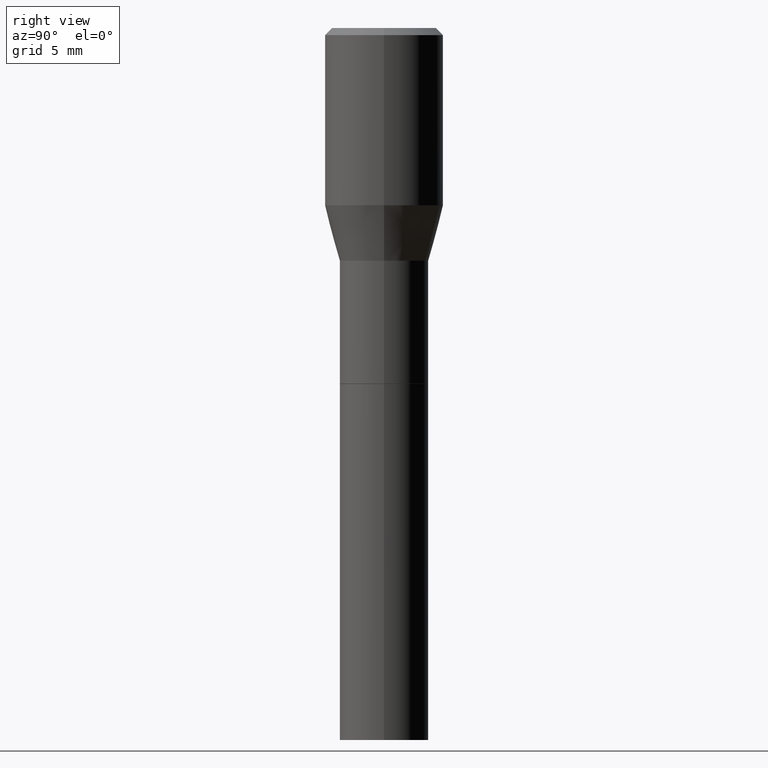
[diagram: clean part render]
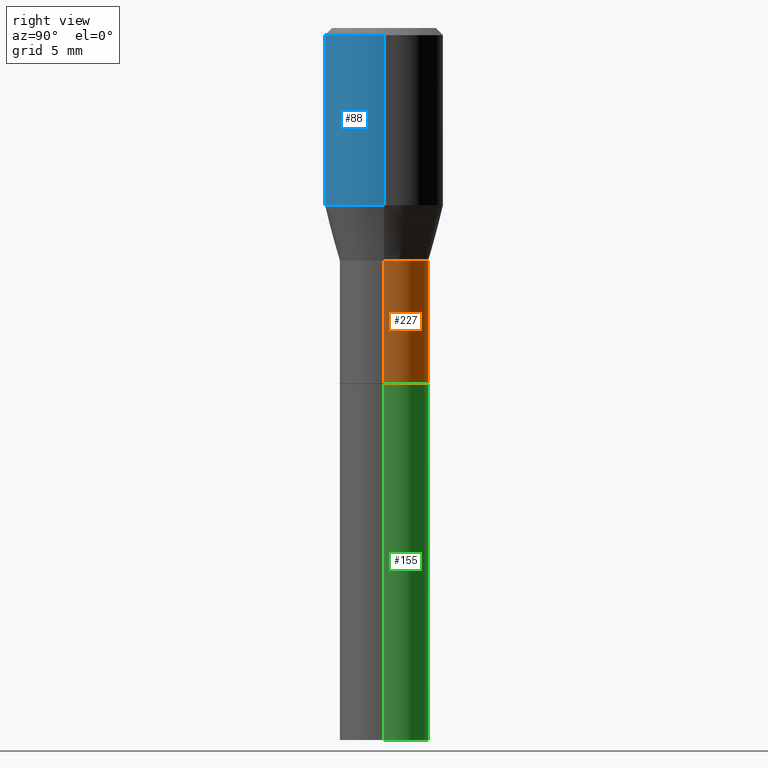
[diagram: same view with three faces highlighted in distinct colors, each labeled with its STEP entity id]
A machine part, right view with three faces highlighted in distinct colors.
Their STEP definitions:

[orange] entity #227 — the highlighted cylindrical surface (partial cylindrical patch) has radius 2.3813 mm, axis along (-0, 0, 1).
#1 = DIRECTION ( 'NONE',  ( -2.445468806185136597E-29, 3.491481338843145583E-15, 1.000000000000000000 ) ) ;
#77 = DIRECTION ( 'NONE',  ( -2.445468806185136597E-29, 3.491481338843145583E-15, 1.000000000000000000 ) ) ;
#78 = ORIENTED_EDGE ( 'NONE', *, *, #410, .T. ) ;
#83 = ORIENTED_EDGE ( 'NONE', *, *, #338, .T. ) ;
#99 = DIRECTION ( 'NONE',  ( 1.000000000000000000, -6.982962677686266711E-15, 4.876176775795935793E-29 ) ) ;
#104 = FACE_OUTER_BOUND ( 'NONE', #439, .T. ) ;
#113 = CARTESIAN_POINT ( 'NONE',  ( -0.09375000000000005551, -7.300699614480138057E-16, -0.4900000000000001577 ) ) ;
#115 = CARTESIAN_POINT ( 'NONE',  ( 0.09375000000000012490, -6.546527510330883916E-16, 4.571415727308696112E-30 ) ) ;
#118 = DIRECTION ( 'NONE',  ( 1.000000000000000000, -6.982962677686269077E-15, 0.000000000000000000 ) ) ;
#120 = VERTEX_POINT ( 'NONE', #443 ) ;
#147 = CARTESIAN_POINT ( 'NONE',  ( 0.09375000000000005551, -2.365478607066230027E-15, -0.4900000000000001577 ) ) ;
#151 = ORIENTED_EDGE ( 'NONE', *, *, #436, .F. ) ;
#193 = LINE ( 'NONE', #254, #317 ) ;
#196 = CIRCLE ( 'NONE', #341, 0.09375000000000019429 ) ;
#217 = AXIS2_PLACEMENT_3D ( 'NONE', #257, #399, #293 ) ;
#223 = CARTESIAN_POINT ( 'NONE',  ( -0.09375000000000019429, -1.950731448687842083E-15, -0.7495000000000000551 ) ) ;
#227 = ADVANCED_FACE ( 'NONE', ( #104 ), #282, .T. ) ;
#241 = VECTOR ( 'NONE', #333, 39.37007874015748143 ) ;
#254 = CARTESIAN_POINT ( 'NONE',  ( -0.09375000000000012490, 6.661338147750948117E-16, -4.611501647113980301E-30 ) ) ;
#257 = CARTESIAN_POINT ( 'NONE',  ( 1.198279715030717314E-29, -1.710825856033141931E-15, -0.4900000000000001577 ) ) ;
#282 = CYLINDRICAL_SURFACE ( 'NONE', #330, 0.09375000000000012490 ) ;
#293 = DIRECTION ( 'NONE',  ( 1.000000000000000000, -6.982962677686269077E-15, 0.000000000000000000 ) ) ;
#301 = ORIENTED_EDGE ( 'NONE', *, *, #380, .F. ) ;
#303 = DIRECTION ( 'NONE',  ( -2.445468806185136877E-29, 3.491481338843145188E-15, 1.000000000000000000 ) ) ;
#312 = CIRCLE ( 'NONE', #217, 0.09375000000000005551 ) ;
#317 = VECTOR ( 'NONE', #303, 39.37007874015748143 ) ;
#330 = AXIS2_PLACEMENT_3D ( 'NONE', #427, #1, #99 ) ;
#333 = DIRECTION ( 'NONE',  ( -2.445468806185136877E-29, 3.491481338843145188E-15, 1.000000000000000000 ) ) ;
#335 = LINE ( 'NONE', #115, #241 ) ;
#338 = EDGE_CURVE ( 'NONE', #413, #357, #193, .T. ) ;
#341 = AXIS2_PLACEMENT_3D ( 'NONE', #397, #77, #118 ) ;
#357 = VERTEX_POINT ( 'NONE', #113 ) ;
#380 = EDGE_CURVE ( 'NONE', #120, #426, #335, .T. ) ;
#397 = CARTESIAN_POINT ( 'NONE',  ( 1.832878870235759926E-29, -2.616865263462937979E-15, -0.7495000000000000551 ) ) ;
#399 = DIRECTION ( 'NONE',  ( -2.445468806185136597E-29, 3.491481338843145583E-15, 1.000000000000000000 ) ) ;
#410 = EDGE_CURVE ( 'NONE', #120, #413, #196, .T. ) ;
#413 = VERTEX_POINT ( 'NONE', #223 ) ;
#426 = VERTEX_POINT ( 'NONE', #147 ) ;
#427 = CARTESIAN_POINT ( 'NONE',  ( 0.000000000000000000, 0.000000000000000000, 0.000000000000000000 ) ) ;
#436 = EDGE_CURVE ( 'NONE', #426, #357, #312, .T. ) ;
#439 = EDGE_LOOP ( 'NONE', ( #78, #83, #151, #301 ) ) ;
#443 = CARTESIAN_POINT ( 'NONE',  ( 0.09375000000000019429, -3.271518014496026667E-15, -0.7495000000000000551 ) ) ;

[blue] entity #88 — the highlighted cylindrical surface (partial cylindrical patch) has radius 3.175 mm, axis along (-0, 0, 1).
#2 = CIRCLE ( 'NONE', #302, 0.1250000000000000000 ) ;
#6 = EDGE_CURVE ( 'NONE', #287, #294, #292, .T. ) ;
#13 = VERTEX_POINT ( 'NONE', #154 ) ;
#16 = CARTESIAN_POINT ( 'NONE',  ( 9.130730327492267337E-30, -1.303626301338105429E-15, -0.3733734122634732588 ) ) ;
#27 = DIRECTION ( 'NONE',  ( 1.000000000000000000, -6.982962677686266711E-15, 0.000000000000000000 ) ) ;
#50 = CARTESIAN_POINT ( 'NONE',  ( -0.1250000000000000000, 2.101791589897489784E-16, -0.01499999999999999944 ) ) ;
#61 = EDGE_LOOP ( 'NONE', ( #435, #429, #93, #321 ) ) ;
#62 = CARTESIAN_POINT ( 'NONE',  ( 3.668203209277705088E-31, -5.237222008264718399E-17, -0.01499999999999999944 ) ) ;
#82 = CARTESIAN_POINT ( 'NONE',  ( 0.1250000000000000000, -8.728703347107833388E-16, 6.095220969744919741E-30 ) ) ;
#86 = CARTESIAN_POINT ( 'NONE',  ( 0.000000000000000000, 0.000000000000000000, 0.000000000000000000 ) ) ;
#88 = ADVANCED_FACE ( 'NONE', ( #271 ), #378, .T. ) ;
#93 = ORIENTED_EDGE ( 'NONE', *, *, #97, .T. ) ;
#97 = EDGE_CURVE ( 'NONE', #294, #13, #158, .T. ) ;
#116 = DIRECTION ( 'NONE',  ( -2.445468806185136597E-29, 3.491481338843145583E-15, 1.000000000000000000 ) ) ;
#133 = EDGE_CURVE ( 'NONE', #287, #137, #379, .T. ) ;
#137 = VERTEX_POINT ( 'NONE', #50 ) ;
#140 = VECTOR ( 'NONE', #376, 39.37007874015748143 ) ;
#145 = EDGE_CURVE ( 'NONE', #137, #13, #2, .T. ) ;
#154 = CARTESIAN_POINT ( 'NONE',  ( 0.1250000000000000000, -9.252425547934304180E-16, -0.01499999999999999944 ) ) ;
#158 = LINE ( 'NONE', #82, #285 ) ;
#194 = DIRECTION ( 'NONE',  ( 1.000000000000000000, -6.982962677686266711E-15, 0.000000000000000000 ) ) ;
#226 = DIRECTION ( 'NONE',  ( -2.445468806185136597E-29, 3.491481338843145583E-15, 1.000000000000000000 ) ) ;
#230 = DIRECTION ( 'NONE',  ( 1.000000000000000000, -6.982962677686266711E-15, 4.876176775795935793E-29 ) ) ;
#271 = FACE_OUTER_BOUND ( 'NONE', #61, .T. ) ;
#285 = VECTOR ( 'NONE', #349, 39.37007874015748143 ) ;
#287 = VERTEX_POINT ( 'NONE', #433 ) ;
#292 = CIRCLE ( 'NONE', #465, 0.1250000000000000000 ) ;
#294 = VERTEX_POINT ( 'NONE', #331 ) ;
#295 = AXIS2_PLACEMENT_3D ( 'NONE', #86, #116, #230 ) ;
#302 = AXIS2_PLACEMENT_3D ( 'NONE', #62, #226, #194 ) ;
#321 = ORIENTED_EDGE ( 'NONE', *, *, #145, .F. ) ;
#331 = CARTESIAN_POINT ( 'NONE',  ( 0.1250000000000000000, -2.176496636048888767E-15, -0.3733734122634732588 ) ) ;
#349 = DIRECTION ( 'NONE',  ( -2.445468806185136877E-29, 3.491481338843145188E-15, 1.000000000000000000 ) ) ;
#350 = DIRECTION ( 'NONE',  ( -2.445468806185136597E-29, 3.491481338843145583E-15, 1.000000000000000000 ) ) ;
#376 = DIRECTION ( 'NONE',  ( -2.445468806185136877E-29, 3.491481338843145188E-15, 1.000000000000000000 ) ) ;
#378 = CYLINDRICAL_SURFACE ( 'NONE', #295, 0.1250000000000000000 ) ;
#379 = LINE ( 'NONE', #455, #140 ) ;
#429 = ORIENTED_EDGE ( 'NONE', *, *, #6, .T. ) ;
#433 = CARTESIAN_POINT ( 'NONE',  ( -0.1250000000000000000, -4.154478816379799005E-16, -0.3733734122634732588 ) ) ;
#435 = ORIENTED_EDGE ( 'NONE', *, *, #133, .F. ) ;
#455 = CARTESIAN_POINT ( 'NONE',  ( -0.1250000000000000000, 8.881784197001252323E-16, -6.148668862818632227E-30 ) ) ;
#465 = AXIS2_PLACEMENT_3D ( 'NONE', #16, #350, #27 ) ;

[green] entity #155 — the highlighted cylindrical surface (partial cylindrical patch) has radius 2.3813 mm, axis along (-0, 0, 1).
#15 = DIRECTION ( 'NONE',  ( -2.445468806185136877E-29, 3.491481338843145188E-15, 1.000000000000000000 ) ) ;
#19 = VERTEX_POINT ( 'NONE', #126 ) ;
#35 = ORIENTED_EDGE ( 'NONE', *, *, #444, .F. ) ;
#40 = DIRECTION ( 'NONE',  ( 1.000000000000000000, -6.982962677686266711E-15, 0.000000000000000000 ) ) ;
#73 = VERTEX_POINT ( 'NONE', #434 ) ;
#75 = CARTESIAN_POINT ( 'NONE',  ( 0.09375000000000001388, -5.891874759297805681E-15, -1.500000000000000222 ) ) ;
#79 = CARTESIAN_POINT ( 'NONE',  ( 0.09375000000000001388, -6.546527510330875041E-16, 4.571415727308690506E-30 ) ) ;
#94 = DIRECTION ( 'NONE',  ( -2.445468806185136597E-29, 3.491481338843145583E-15, 1.000000000000000000 ) ) ;
#111 = LINE ( 'NONE', #79, #247 ) ;
#126 = CARTESIAN_POINT ( 'NONE',  ( -0.09375000000000001388, -3.261782691423444906E-15, -1.500000000000000222 ) ) ;
#127 = CARTESIAN_POINT ( 'NONE',  ( 0.000000000000000000, 0.000000000000000000, 0.000000000000000000 ) ) ;
#139 = EDGE_LOOP ( 'NONE', ( #417, #419, #299, #35 ) ) ;
#155 = ADVANCED_FACE ( 'NONE', ( #165 ), #314, .T. ) ;
#165 = FACE_OUTER_BOUND ( 'NONE', #139, .T. ) ;
#184 = CARTESIAN_POINT ( 'NONE',  ( -0.09375000000000001388, -3.261782691423444906E-15, -0.7500000000000001110 ) ) ;
#203 = AXIS2_PLACEMENT_3D ( 'NONE', #261, #360, #40 ) ;
#215 = DIRECTION ( 'NONE',  ( 1.000000000000000000, -6.982962677686265922E-15, 4.876176775795935793E-29 ) ) ;
#247 = VECTOR ( 'NONE', #367, 39.37007874015748143 ) ;
#250 = CARTESIAN_POINT ( 'NONE',  ( 3.668203209277704895E-29, -5.237222008264718177E-15, -1.500000000000000222 ) ) ;
#260 = CIRCLE ( 'NONE', #203, 0.09375000000000001388 ) ;
#261 = CARTESIAN_POINT ( 'NONE',  ( 1.834101604638852448E-29, -2.618611004132359088E-15, -0.7500000000000001110 ) ) ;
#279 = EDGE_CURVE ( 'NONE', #383, #19, #425, .T. ) ;
#296 = CARTESIAN_POINT ( 'NONE',  ( -0.09375000000000001388, 6.661338147750940229E-16, -4.611501647113973995E-30 ) ) ;
#299 = ORIENTED_EDGE ( 'NONE', *, *, #313, .F. ) ;
#307 = EDGE_CURVE ( 'NONE', #19, #364, #402, .T. ) ;
#311 = VECTOR ( 'NONE', #15, 39.37007874015748143 ) ;
#313 = EDGE_CURVE ( 'NONE', #73, #364, #260, .T. ) ;
#314 = CYLINDRICAL_SURFACE ( 'NONE', #344, 0.09375000000000001388 ) ;
#344 = AXIS2_PLACEMENT_3D ( 'NONE', #127, #94, #215 ) ;
#359 = AXIS2_PLACEMENT_3D ( 'NONE', #250, #388, #428 ) ;
#360 = DIRECTION ( 'NONE',  ( -2.445468806185136597E-29, 3.491481338843145583E-15, 1.000000000000000000 ) ) ;
#364 = VERTEX_POINT ( 'NONE', #184 ) ;
#367 = DIRECTION ( 'NONE',  ( -2.445468806185136877E-29, 3.491481338843145188E-15, 1.000000000000000000 ) ) ;
#383 = VERTEX_POINT ( 'NONE', #75 ) ;
#388 = DIRECTION ( 'NONE',  ( -2.445468806185136597E-29, 3.491481338843145583E-15, 1.000000000000000000 ) ) ;
#402 = LINE ( 'NONE', #296, #311 ) ;
#417 = ORIENTED_EDGE ( 'NONE', *, *, #279, .T. ) ;
#419 = ORIENTED_EDGE ( 'NONE', *, *, #307, .T. ) ;
#425 = CIRCLE ( 'NONE', #359, 0.09375000000000001388 ) ;
#428 = DIRECTION ( 'NONE',  ( 1.000000000000000000, -6.982962677686261189E-15, 0.000000000000000000 ) ) ;
#434 = CARTESIAN_POINT ( 'NONE',  ( 0.09375000000000001388, -3.273263755165446987E-15, -0.7500000000000001110 ) ) ;
#444 = EDGE_CURVE ( 'NONE', #383, #73, #111, .T. ) ;